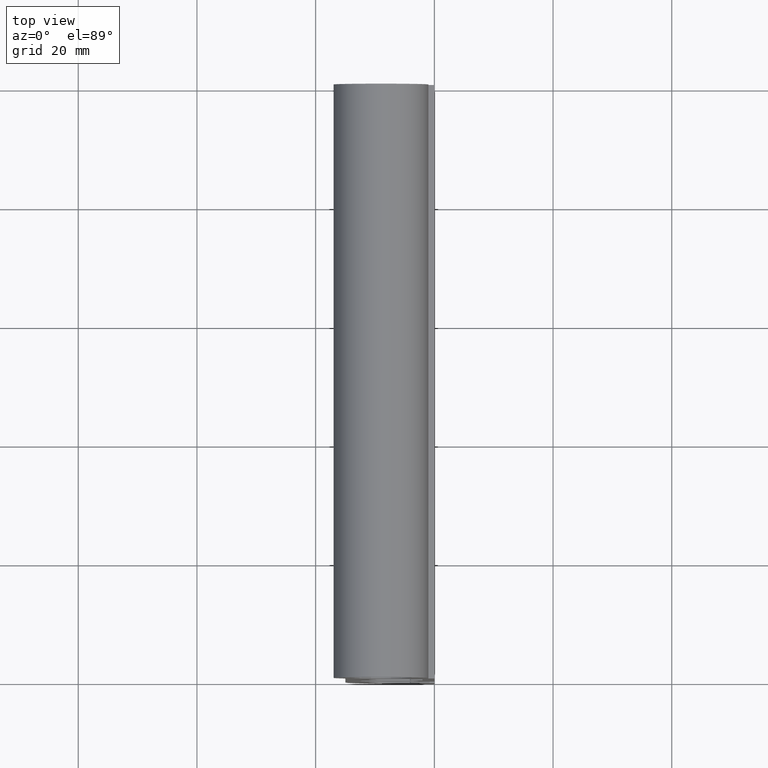
[diagram: clean part render]
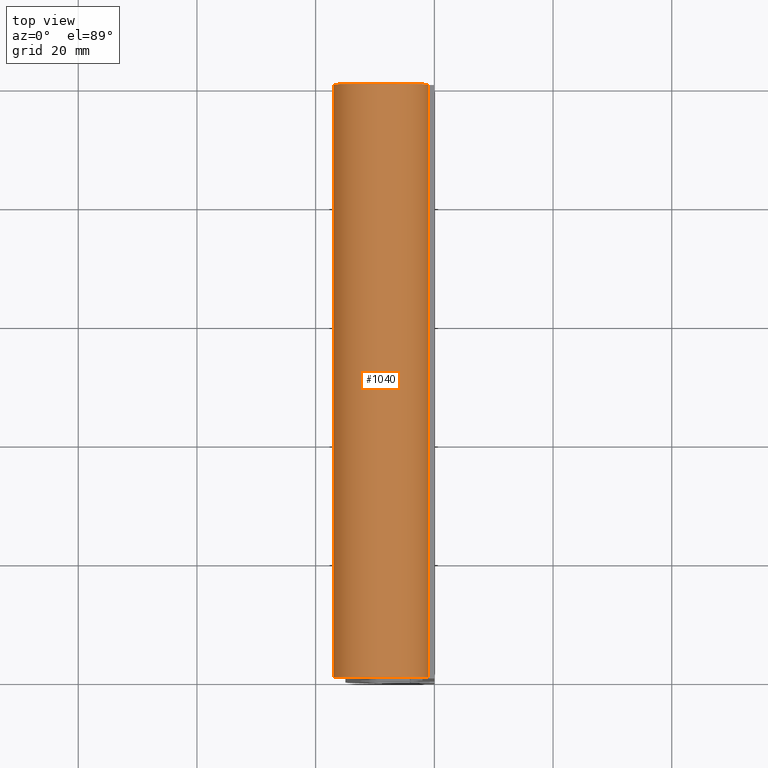
[diagram: same view with one face highlighted and labeled with its STEP entity id]
A machine part, top view. The second image highlights one B-rep face of the part: STEP entity #1040.
In plain terms, the highlighted cylindrical surface (partial cylindrical patch) has radius 8 mm, axis along (0, 1, 0).
Its self-contained STEP definition (entity closure, byte-faithful):
#51=CIRCLE('',#1142,8.);
#52=CIRCLE('',#1143,8.);
#83=CYLINDRICAL_SURFACE('',#1141,8.);
#121=FACE_OUTER_BOUND('',#174,.T.);
#174=EDGE_LOOP('',(#791,#792,#793,#794));
#265=LINE('',#1667,#372);
#266=LINE('',#1673,#373);
#372=VECTOR('',#1358,10.);
#373=VECTOR('',#1365,10.);
#478=VERTEX_POINT('',#1663);
#479=VERTEX_POINT('',#1665);
#480=VERTEX_POINT('',#1669);
#481=VERTEX_POINT('',#1671);
#609=EDGE_CURVE('',#478,#479,#265,.T.);
#610=EDGE_CURVE('',#478,#480,#51,.T.);
#611=EDGE_CURVE('',#481,#479,#52,.T.);
#612=EDGE_CURVE('',#480,#481,#266,.T.);
#791=ORIENTED_EDGE('',*,*,#610,.F.);
#792=ORIENTED_EDGE('',*,*,#609,.T.);
#793=ORIENTED_EDGE('',*,*,#611,.F.);
#794=ORIENTED_EDGE('',*,*,#612,.F.);
#1040=ADVANCED_FACE('',(#121),#83,.T.);
#1141=AXIS2_PLACEMENT_3D('',#1668,#1359,#1360);
#1142=AXIS2_PLACEMENT_3D('',#1670,#1361,#1362);
#1143=AXIS2_PLACEMENT_3D('',#1672,#1363,#1364);
#1358=DIRECTION('',(0.,1.,0.));
#1359=DIRECTION('center_axis',(0.,1.,0.));
#1360=DIRECTION('ref_axis',(0.818181818181817,0.,0.57495957457607));
#1361=DIRECTION('center_axis',(0.,-1.,0.));
#1362=DIRECTION('ref_axis',(0.818181818181817,0.,0.57495957457607));
#1363=DIRECTION('center_axis',(0.,1.,0.));
#1364=DIRECTION('ref_axis',(0.818181818181817,0.,0.57495957457607));
#1365=DIRECTION('',(0.,1.,0.));
#1663=CARTESIAN_POINT('',(-1.,0.,5.));
#1665=CARTESIAN_POINT('',(-1.,100.,5.));
#1667=CARTESIAN_POINT('',(-1.,0.,5.));
#1668=CARTESIAN_POINT('Origin',(-9.,0.,5.));
#1669=CARTESIAN_POINT('',(-15.5454545454545,0.,0.40032340339144));
#1670=CARTESIAN_POINT('Origin',(-9.,0.,5.));
#1671=CARTESIAN_POINT('',(-15.5454545454545,100.,0.40032340339144));
#1672=CARTESIAN_POINT('Origin',(-9.,100.,5.));
#1673=CARTESIAN_POINT('',(-15.5454545454545,0.,0.40032340339144));